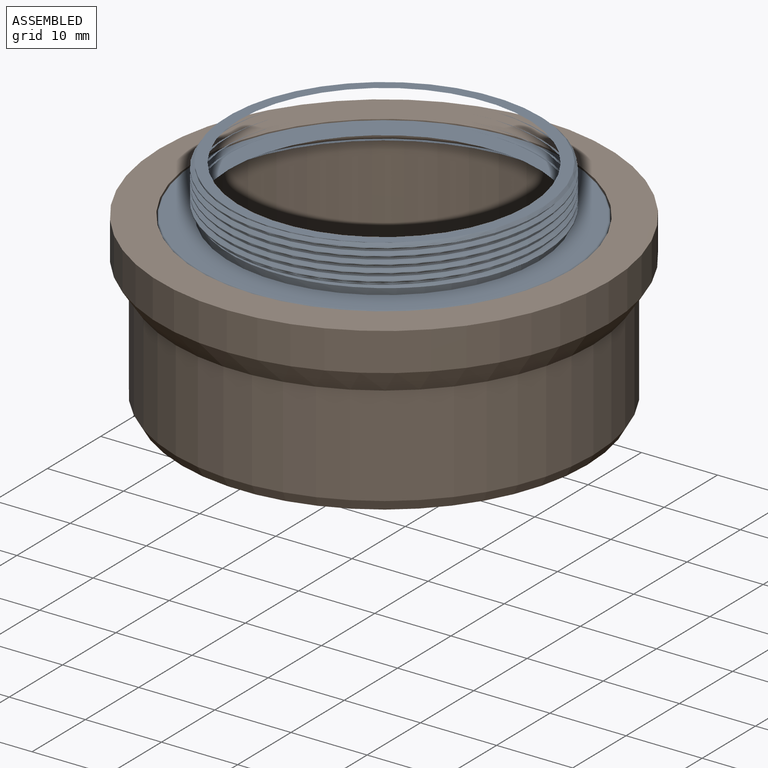
[diagram: assembled view]
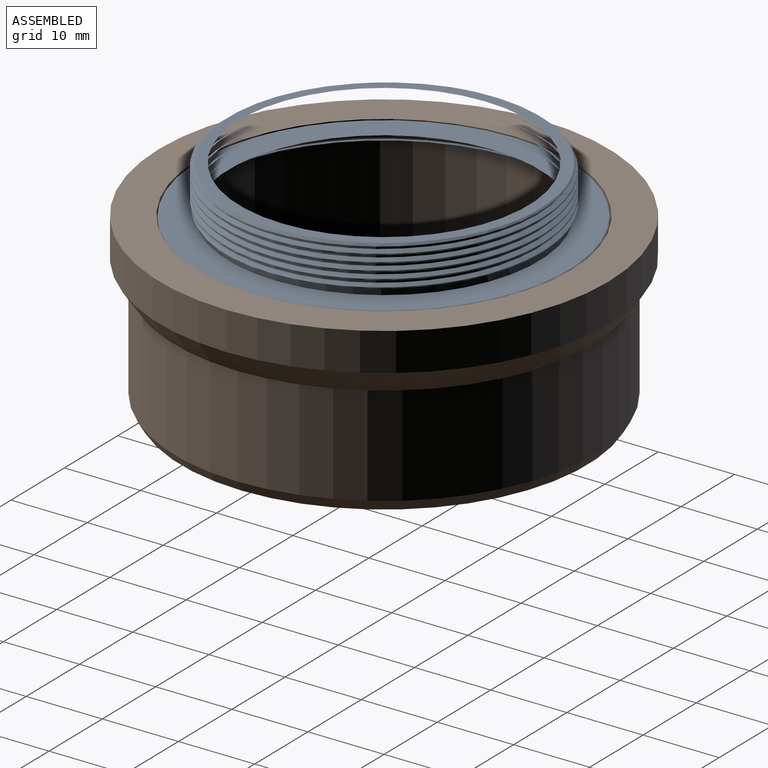
[diagram: assembled view, second angle]
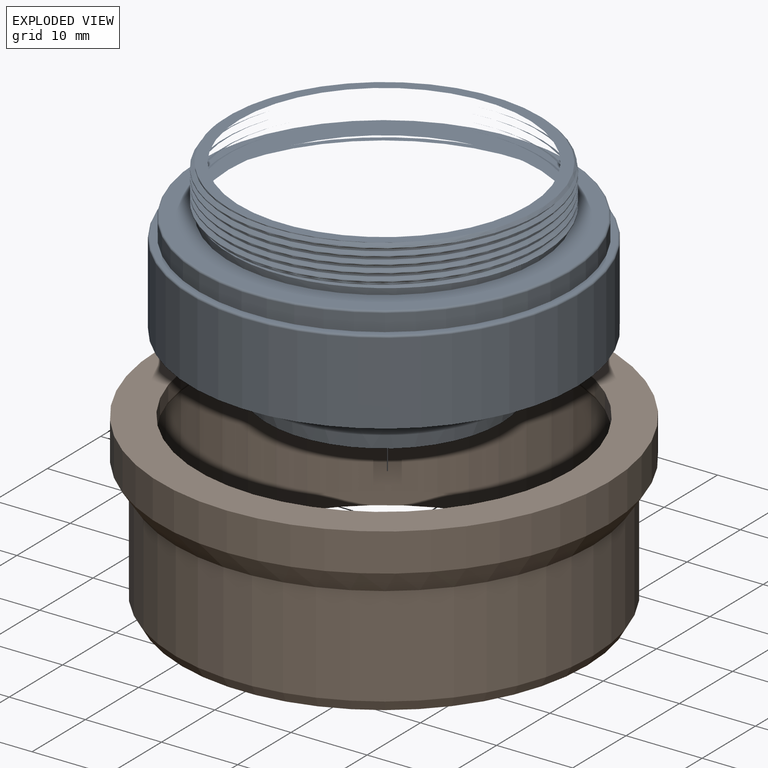
[diagram: exploded view]
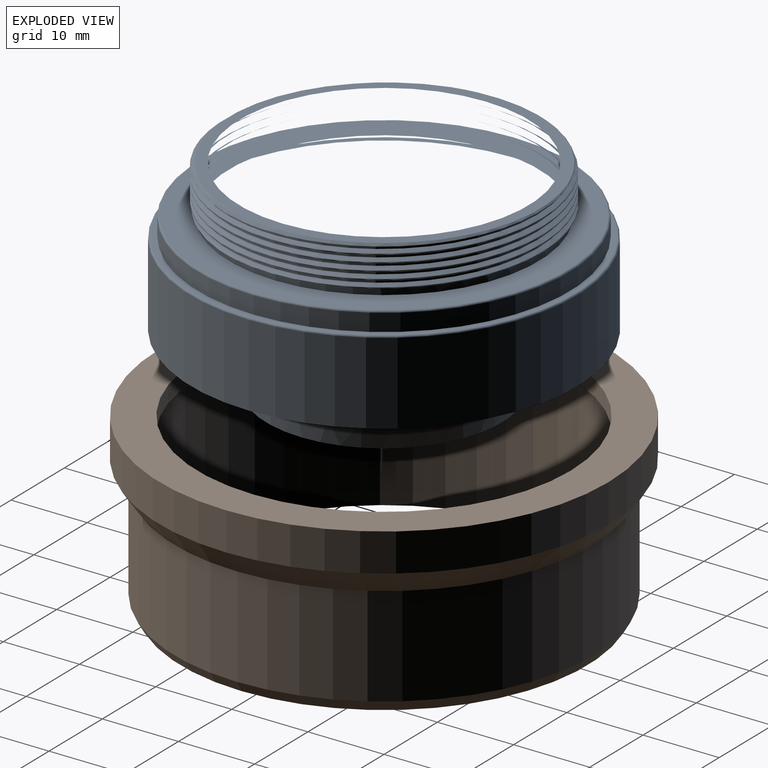
[diagram: exploded view, second angle]
ASSEMBLY  parts=2 mates=2
PART A: 24 faces, bbox 55.6x55.6x28 mm
  f0: plane 30.9x30.9mm, normal (0,0,-1), area 247.2mm2, adj f1,f20
  f1: cone r=15.45mm half-angle=12.1deg, axis (0,0,1), area 728.1mm2, adj f0,f2
  f2: plane 50.8x50.8mm, normal (0,0,-1), area 1124.1mm2, adj f1,f3
  f3: cylinder r=25.4mm len=50.8mm, axis (0,0,1), area 1716.6mm2, adj f2,f4
  f4: torus R=25.15mm, axis (0,0,1), area 62.4mm2, adj f3,f5
  f5: plane 50.3x50.3mm, normal (0,0,1), area 116.7mm2, adj f4,f6
  f6: cylinder r=24.4mm len=48.8mm, axis (0,0,1), area 344.9mm2, adj f5,f7
  f7: torus R=24.15mm, axis (0,0,1), area 60mm2, adj f6,f8
  f8: plane 48.3x48.3mm, normal (0,0,1), area 531.2mm2, adj f7,f9
  f9: cylinder r=20.35mm len=40.7mm, axis (0,0,1), area 143.9mm2, adj f8,f10,f15,f22,f23
  f10: cylinder r=20.35mm len=40.7mm, axis (0,0,1), area 32mm2, adj f9,f11,f22,f23
  f11: cylinder r=20.35mm len=40.7mm, axis (0,0,1), area 32mm2, adj f10,f12,f22,f23
  f12: cylinder r=20.35mm len=40.7mm, axis (0,0,1), area 32mm2, adj f11,f13,f22,f23
  f13: cylinder r=20.35mm len=40.7mm, axis (0,0,1), area 32mm2, adj f12,f14,f22,f23
  f14: cylinder r=20.35mm len=40.7mm, axis (0,0,1), area 24mm2, adj f13,f17,f22,f23
  f15: plane 41.71x35.98mm, normal (0,0,-1), area 30.6mm2, adj f9,f21,f22,f23
  f16: cone r=21mm half-angle=45deg, axis (0,0,-1), area 25.4mm2, adj f17,f21,f22,f23
  f17: plane 41.04x40.89mm, normal (0,0,1), area 179.7mm2, adj f14,f16,f18,f22,f23
  f18: cone r=13.9mm half-angle=12.1deg, axis (0,0,1), area 2510.7mm2, adj f17,f19
  f19: plane 27.8x27.8mm, normal (0,0,1), area 104.3mm2, adj f18,f20
  f20: cylinder r=12.65mm len=25.3mm, axis (0,0,1), area 238.4mm2, adj f0,f19
  f21: cylinder r=20.89mm len=41.78mm, axis (0,0,1), area 81.3mm2, adj f15,f16,f22,f23
  f22: bspline ~48.25x41.78mm, area 284.4mm2, adj f9,f10,f11,f12,f13,f14,f15,f16
  f23: bspline ~41.75x41.72mm, area 421.3mm2, adj f9,f10,f11,f12,f13,f14,f15,f16
PART B: 10 faces, bbox 59x59x22.5 mm
  f0: cylinder r=27.5mm len=55mm, axis (0,0,1), area 2266mm2, adj f1,f9
  f1: cone r=29.5mm half-angle=33.7deg, axis (0,0,1), area 645.6mm2, adj f0,f2
  f2: cylinder r=29.5mm len=59mm, axis (0,0,1), area 926.8mm2, adj f1,f3
  f3: plane 59x59mm, normal (0,0,1), area 848.2mm2, adj f2,f4
  f4: cylinder r=24.5mm len=49mm, axis (0,0,1), area 307.9mm2, adj f3,f5
  f5: torus R=25mm, axis (0,0,1), area 121.8mm2, adj f4,f6
  f6: plane 51x51mm, normal (0,0,-1), area 79.3mm2, adj f5,f7
  f7: cylinder r=25.5mm len=51mm, axis (0,0,1), area 3204.4mm2, adj f6,f8
  f8: plane 53.4x53.4mm, normal (0,0,-1), area 196.8mm2, adj f7,f9
  f9: cone r=26.7mm half-angle=30deg, axis (0,0,1), area 272.4mm2, adj f0,f8
PLACE A t=(1.29,-10.11,26.6)mm
PLACE B t=(1.29,-10.11,19.97)mm
MATE planar A.f1 <-> B.f0  axis (0,0,1) through (1.29,-10.11,4.6)mm
MATE cylindrical B.f0 <-> A.f1  axis (0,0,1) through (1.29,-10.11,6.1)mm
